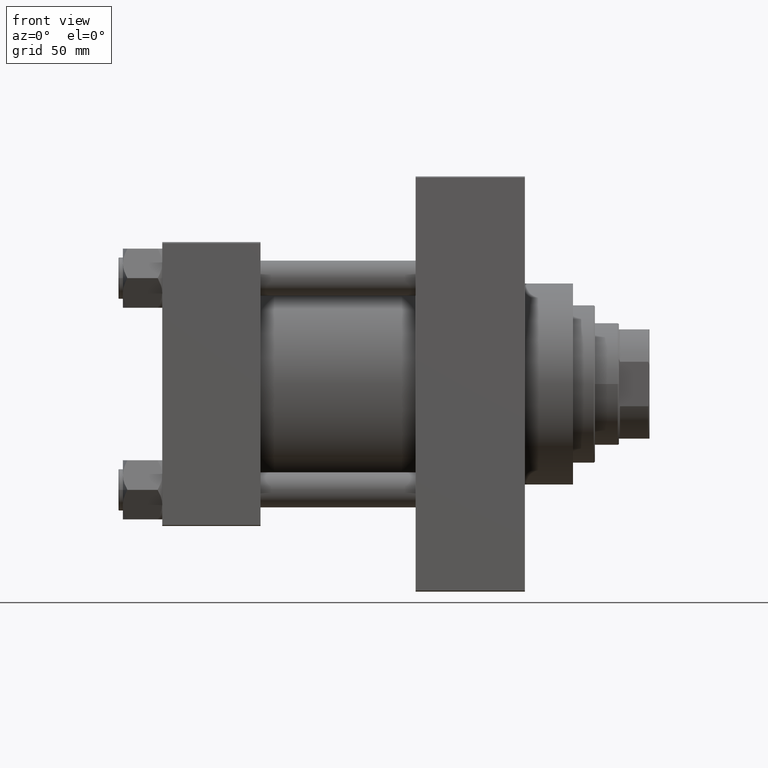
[diagram: clean part render]
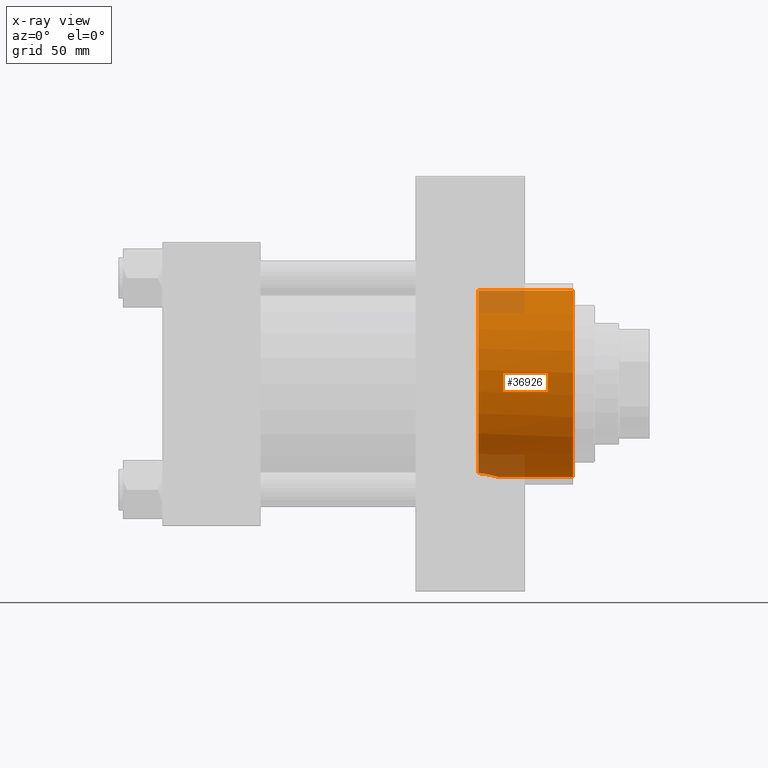
[diagram: x-ray — body ghosted, one internal face saturated and labeled with its STEP entity id]
A machine part, front view, then the same camera in x-ray: the body is ghosted and one INTERNAL B-rep face — a face not visible from any outside direction — is saturated and labeled: STEP entity #36926.
In plain terms, the highlighted cylindrical surface (partial cylindrical patch) has radius 42.75 mm, axis along (1, 0, 0).
Its self-contained STEP definition (entity closure, byte-faithful):
#217 = CARTESIAN_POINT ( 'NONE',  ( 149.1351602650894961, -10.44419664956254401, -41.45664902860858092 ) ) ;
#351 = CARTESIAN_POINT ( 'NONE',  ( 144.7399999999999807, 0.000000000000000000, -42.75000000000000000 ) ) ;
#446 = CARTESIAN_POINT ( 'NONE',  ( 144.7399999999999807, -12.67993690836039278, -40.82623788692756506 ) ) ;
#487 = VERTEX_POINT ( 'NONE', #30655 ) ;
#615 = VECTOR ( 'NONE', #1044, 1000.000000000000000 ) ;
#1044 = DIRECTION ( 'NONE',  ( 1.000000000000000000, -0.000000000000000000, -0.000000000000000000 ) ) ;
#1072 = CARTESIAN_POINT ( 'NONE',  ( 154.2199999999999989, 7.999542617006822839E-27, -42.75000000000000000 ) ) ;
#1376 = CARTESIAN_POINT ( 'NONE',  ( 187.9999999999999716, 0.000000000000000000, -42.75000000000000000 ) ) ;
#2818 = CARTESIAN_POINT ( 'NONE',  ( 144.7399999999999807, 5.235365066354935472E-15, 42.75000000000000000 ) ) ;
#3326 = CARTESIAN_POINT ( 'NONE',  ( 152.3763861193419871, -6.770732795594999409, -42.21512903942317507 ) ) ;
#3572 = CARTESIAN_POINT ( 'NONE',  ( 153.2993960643596836, -4.860054019011696091, -42.47412520213219267 ) ) ;
#3584 = CARTESIAN_POINT ( 'NONE',  ( 144.7399999999999807, 0.000000000000000000, 0.000000000000000000 ) ) ;
#4050 = CARTESIAN_POINT ( 'NONE',  ( 147.9822741085590110, -11.24766306689396345, -41.24590971077732604 ) ) ;
#4285 = CARTESIAN_POINT ( 'NONE',  ( 150.6852196200359515, -9.025364359016284865, -41.78941323369598848 ) ) ;
#6949 = CARTESIAN_POINT ( 'NONE',  ( 153.4260137807291642, -4.526382623994734899, -42.51103856060492348 ) ) ;
#9314 = CARTESIAN_POINT ( 'NONE',  ( 144.7399999999999807, 0.000000000000000000, 0.000000000000000000 ) ) ;
#10434 = DIRECTION ( 'NONE',  ( 1.000000000000000000, 0.000000000000000000, 0.000000000000000000 ) ) ;
#11045 = CARTESIAN_POINT ( 'NONE',  ( 149.6754924569603418, -9.999825575006541456, -41.56700312386078622 ) ) ;
#11967 = ORIENTED_EDGE ( 'NONE', *, *, #28869, .T. ) ;
#12178 = ORIENTED_EDGE ( 'NONE', *, *, #21287, .F. ) ;
#13409 = LINE ( 'NONE', #2818, #32447 ) ;
#14891 = CARTESIAN_POINT ( 'NONE',  ( 151.1575723231069617, -8.490431257591536607, -41.90230994099356820 ) ) ;
#15712 = VERTEX_POINT ( 'NONE', #26545 ) ;
#17945 = AXIS2_PLACEMENT_3D ( 'NONE', #3584, #33749, #18281 ) ;
#18281 = DIRECTION ( 'NONE',  ( 0.000000000000000000, 0.000000000000000000, -1.000000000000000000 ) ) ;
#18756 = CARTESIAN_POINT ( 'NONE',  ( 153.7629584476919433, -3.518170577613237260, -42.61034067485237387 ) ) ;
#21287 = EDGE_CURVE ( 'NONE', #47256, #41845, #34115, .T. ) ;
#22151 = FACE_OUTER_BOUND ( 'NONE', #44370, .T. ) ;
#22566 = EDGE_CURVE ( 'NONE', #36912, #487, #33027, .T. ) ;
#24520 = DIRECTION ( 'NONE',  ( 1.000000000000000000, -0.000000000000000000, -0.000000000000000000 ) ) ;
#25146 = DIRECTION ( 'NONE',  ( 0.000000000000000000, 0.000000000000000000, -1.000000000000000000 ) ) ;
#25275 = CARTESIAN_POINT ( 'NONE',  ( 154.2055487969409455, -0.7143419376948711985, -42.74552439370960855 ) ) ;
#25501 = CIRCLE ( 'NONE', #33994, 42.75000000000000000 ) ;
#25525 = CARTESIAN_POINT ( 'NONE',  ( 145.4263400167579618, -12.47749807280259482, -40.88911195506445750 ) ) ;
#25993 = CARTESIAN_POINT ( 'NONE',  ( 154.2199999999999989, 7.999542617006822839E-27, -42.75000000000000000 ) ) ;
#26545 = CARTESIAN_POINT ( 'NONE',  ( 187.9999999999999716, 5.235365066354935472E-15, 42.75000000000000000 ) ) ;
#28780 = CARTESIAN_POINT ( 'NONE',  ( 187.9999999999999716, 0.000000000000000000, 0.000000000000000000 ) ) ;
#28869 = EDGE_CURVE ( 'NONE', #36912, #15712, #13409, .T. ) ;
#30258 = ORIENTED_EDGE ( 'NONE', *, *, #42532, .T. ) ;
#30655 = CARTESIAN_POINT ( 'NONE',  ( 144.7399999999999807, -12.67993690836039278, -40.82623788692756506 ) ) ;
#31703 = EDGE_CURVE ( 'NONE', #15712, #41845, #25501, .T. ) ;
#32447 = VECTOR ( 'NONE', #24520, 1000.000000000000000 ) ;
#33027 = CIRCLE ( 'NONE', #46164, 42.75000000000000000 ) ;
#33510 = CARTESIAN_POINT ( 'NONE',  ( 147.3650373963749018, -11.60846388096255488, -41.14496498017211223 ) ) ;
#33749 = DIRECTION ( 'NONE',  ( 1.000000000000000000, -0.000000000000000000, -0.000000000000000000 ) ) ;
#33994 = AXIS2_PLACEMENT_3D ( 'NONE', #28780, #10434, #25146 ) ;
#34115 = LINE ( 'NONE', #351, #615 ) ;
#35107 = ORIENTED_EDGE ( 'NONE', *, *, #31703, .T. ) ;
#35397 = DIRECTION ( 'NONE',  ( 0.000000000000000000, 0.000000000000000000, -1.000000000000000000 ) ) ;
#36420 = CARTESIAN_POINT ( 'NONE',  ( 153.9325276923767376, -2.832175481623206093, -42.66183901135581635 ) ) ;
#36660 = CARTESIAN_POINT ( 'NONE',  ( 154.2200000000000273, -0.3557163794469174745, -42.75000000000000711 ) ) ;
#36911 = CYLINDRICAL_SURFACE ( 'NONE', #17945, 42.75000000000000000 ) ;
#36912 = VERTEX_POINT ( 'NONE', #44393 ) ;
#36926 = ADVANCED_FACE ( 'NONE', ( #22151 ), #36911, .F. ) ;
#37146 = CARTESIAN_POINT ( 'NONE',  ( 153.0198534454123944, -5.515287097378185344, -42.39402133541481277 ) ) ;
#39035 = ORIENTED_EDGE ( 'NONE', *, *, #22566, .F. ) ;
#39557 = B_SPLINE_CURVE_WITH_KNOTS ( 'NONE', 3,
 ( #25993, #36660, #25275, #43902, #44152, #36420, #18756, #6949, #3572, #37146, #40035, #3326, #40518, #14891, #4285, #11045, #217, #4050, #33510, #44382, #25525, #446 ),
 .UNSPECIFIED., .F., .F.,
 ( 4, 2, 2, 2, 2, 2, 2, 2, 2, 2, 4 ),
 ( 0.01702171439019723592, 0.01808348912762109892, 0.01914526386504496192, 0.02126881333989269138, 0.02233058807731655437, 0.02339236281474042084, 0.02551591228958811214, 0.02763946176443581038, 0.02976301123928350167, 0.03188656071413119991, 0.03401011018897889121 ),
 .UNSPECIFIED. ) ;
#40035 = CARTESIAN_POINT ( 'NONE',  ( 152.8678695714943387, -5.834913689629361855, -42.35109966501105561 ) ) ;
#40518 = CARTESIAN_POINT ( 'NONE',  ( 152.0015928053664425, -7.364010740346991213, -42.11487085516265694 ) ) ;
#41845 = VERTEX_POINT ( 'NONE', #1376 ) ;
#42532 = EDGE_CURVE ( 'NONE', #47256, #487, #39557, .T. ) ;
#43902 = CARTESIAN_POINT ( 'NONE',  ( 154.1474619350561852, -1.428652546488352382, -42.72761509841831185 ) ) ;
#44152 = CARTESIAN_POINT ( 'NONE',  ( 154.1041229325395250, -1.782171368608854944, -42.71427362908442404 ) ) ;
#44370 = EDGE_LOOP ( 'NONE', ( #39035, #11967, #35107, #12178, #30258 ) ) ;
#44382 = CARTESIAN_POINT ( 'NONE',  ( 146.0881855045064697, -12.22213168823645724, -40.96686556097021992 ) ) ;
#44393 = CARTESIAN_POINT ( 'NONE',  ( 144.7399999999999807, 5.235365066354935472E-15, 42.75000000000000000 ) ) ;
#46164 = AXIS2_PLACEMENT_3D ( 'NONE', #9314, #46277, #35397 ) ;
#46277 = DIRECTION ( 'NONE',  ( 1.000000000000000000, 0.000000000000000000, 0.000000000000000000 ) ) ;
#47256 = VERTEX_POINT ( 'NONE', #1072 ) ;